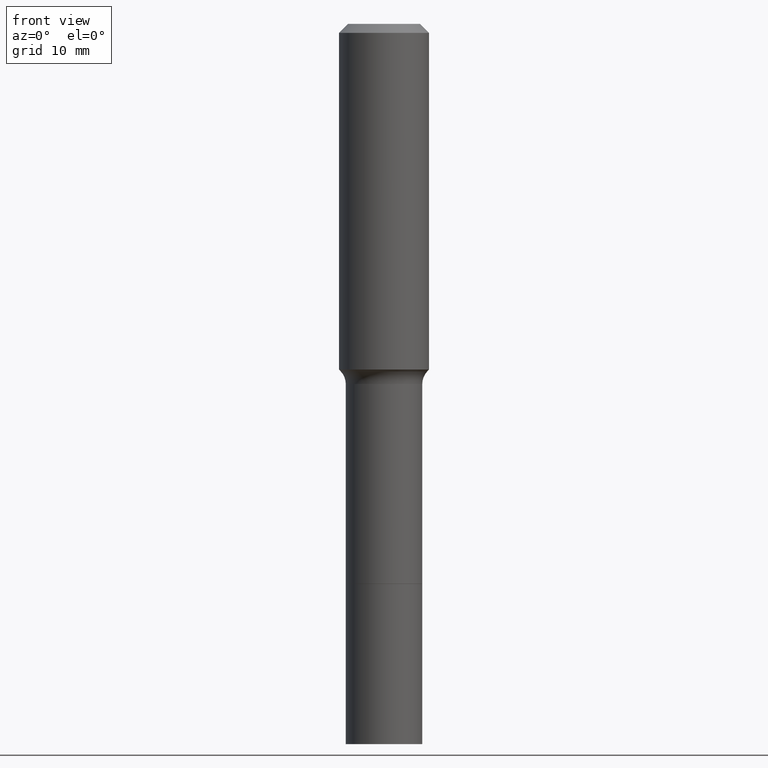
[diagram: clean part render]
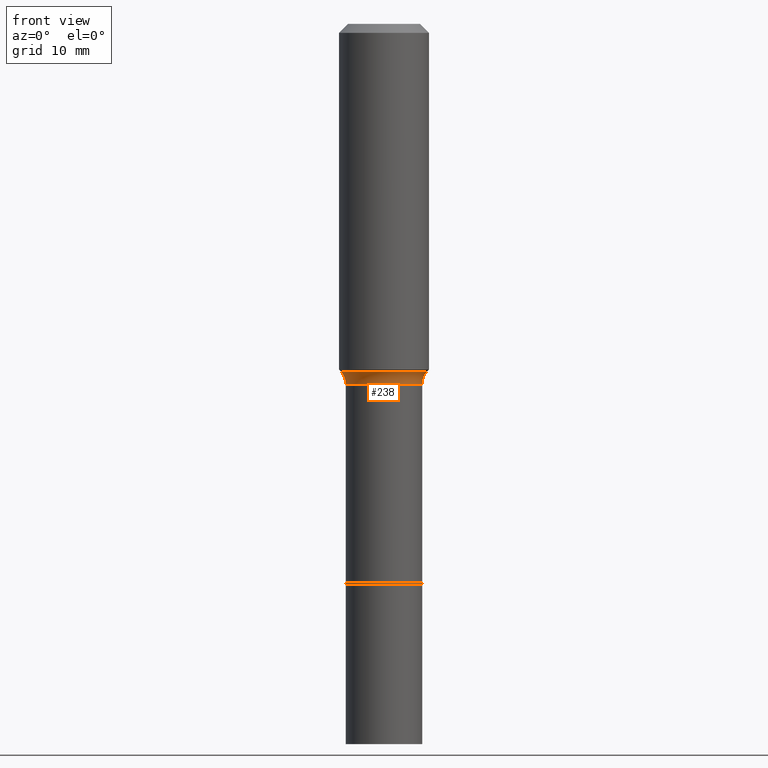
[diagram: same view with one face highlighted and labeled with its STEP entity id]
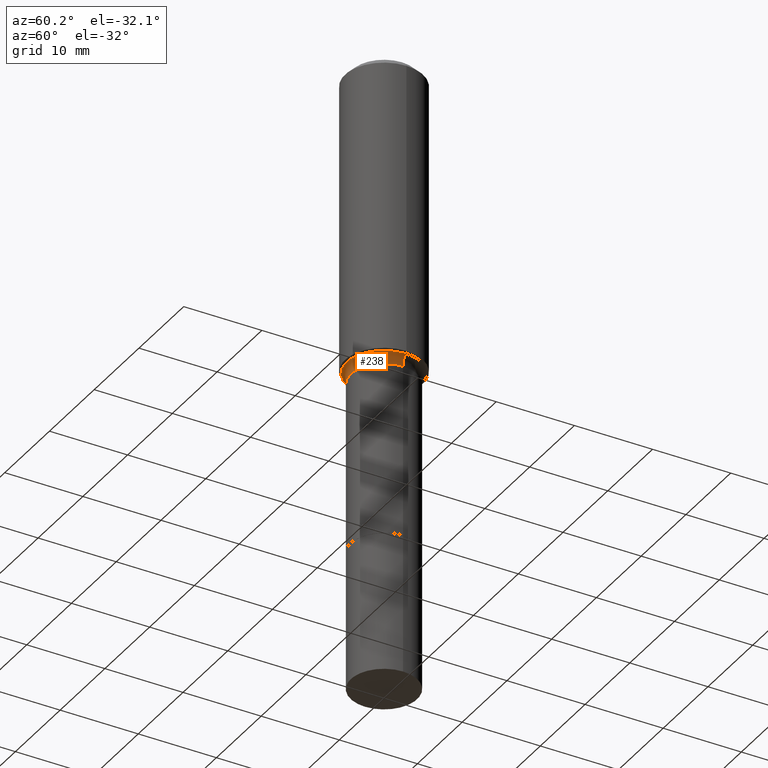
[diagram: same view with one face highlighted and labeled with its STEP entity id]
A machine part, front view. The second image highlights one B-rep face of the part: STEP entity #238.
A second angle (auxiliary view) of the same face is appended — the face is thin or edge-on in the first view.
In plain terms, the highlighted toroidal blend (fillet) surface has major radius 6.2814 mm and minor (blend) radius 2.032 mm.
Its self-contained STEP definition (entity closure, byte-faithful):
#3 = DIRECTION ( 'NONE',  ( -2.445468806185136597E-29, 3.491481338843145583E-15, 1.000000000000000000 ) ) ;
#4 = CIRCLE ( 'NONE', #191, 0.1672999999999999210 ) ;
#6 = CARTESIAN_POINT ( 'NONE',  ( 0.2472999999999998810, -7.224573186334231203E-15, -1.574600000000000222 ) ) ;
#18 = EDGE_CURVE ( 'NONE', #351, #142, #453, .T. ) ;
#45 = AXIS2_PLACEMENT_3D ( 'NONE', #6, #330, #82 ) ;
#77 = CARTESIAN_POINT ( 'NONE',  ( 0.1887917038704662043, -6.625517174344292647E-15, -1.520040131195000255 ) ) ;
#82 = DIRECTION ( 'NONE',  ( 1.000000000000000000, -6.982962677686265133E-15, 0.000000000000000000 ) ) ;
#118 = CARTESIAN_POINT ( 'NONE',  ( -0.2472999999999998810, -3.740514330607691625E-15, -1.574600000000000222 ) ) ;
#129 = DIRECTION ( 'NONE',  ( -2.445468806185136597E-29, 3.491481338843145583E-15, 1.000000000000000000 ) ) ;
#142 = VERTEX_POINT ( 'NONE', #77 ) ;
#144 = AXIS2_PLACEMENT_3D ( 'NONE', #118, #162, #514 ) ;
#162 = DIRECTION ( 'NONE',  ( 7.105427357601001859E-15, 1.000000000000000000, -3.491481338843145583E-15 ) ) ;
#172 = AXIS2_PLACEMENT_3D ( 'NONE', #204, #3, #437 ) ;
#175 = DIRECTION ( 'NONE',  ( 1.000000000000000000, -6.982962677686267499E-15, 0.000000000000000000 ) ) ;
#176 = EDGE_CURVE ( 'NONE', #339, #429, #4, .T. ) ;
#182 = TOROIDAL_SURFACE ( 'NONE', #502, 0.2472999999999998810, 0.07999999999999993228 ) ;
#191 = AXIS2_PLACEMENT_3D ( 'NONE', #410, #458, #175 ) ;
#192 = CIRCLE ( 'NONE', #45, 0.07999999999999993228 ) ;
#204 = CARTESIAN_POINT ( 'NONE',  ( 3.717210724986936016E-29, -5.307191752360030282E-15, -1.520040131195000255 ) ) ;
#216 = FACE_OUTER_BOUND ( 'NONE', #342, .T. ) ;
#238 = ADVANCED_FACE ( 'NONE', ( #216 ), #182, .F. ) ;
#249 = ORIENTED_EDGE ( 'NONE', *, *, #480, .T. ) ;
#259 = DIRECTION ( 'NONE',  ( 1.000000000000000000, -6.982962677686269077E-15, 4.883557194083114022E-29 ) ) ;
#260 = ORIENTED_EDGE ( 'NONE', *, *, #297, .F. ) ;
#270 = CARTESIAN_POINT ( 'NONE',  ( -0.1672999999999999210, -5.833852993955514416E-15, -1.574600000000000222 ) ) ;
#297 = EDGE_CURVE ( 'NONE', #142, #429, #192, .T. ) ;
#318 = CIRCLE ( 'NONE', #144, 0.07999999999999993228 ) ;
#330 = DIRECTION ( 'NONE',  ( -6.982962677686266711E-15, -1.000000000000000000, 3.491481338843145583E-15 ) ) ;
#332 = CARTESIAN_POINT ( 'NONE',  ( 3.850635182219116347E-29, -5.497686516142417553E-15, -1.574600000000000222 ) ) ;
#339 = VERTEX_POINT ( 'NONE', #270 ) ;
#342 = EDGE_LOOP ( 'NONE', ( #443, #249, #465, #260 ) ) ;
#351 = VERTEX_POINT ( 'NONE', #419 ) ;
#410 = CARTESIAN_POINT ( 'NONE',  ( 3.850635182219116347E-29, -5.497686516142417553E-15, -1.574600000000000222 ) ) ;
#419 = CARTESIAN_POINT ( 'NONE',  ( -0.1887917038704662043, -3.965746014790712962E-15, -1.520040131195000255 ) ) ;
#429 = VERTEX_POINT ( 'NONE', #459 ) ;
#437 = DIRECTION ( 'NONE',  ( 1.000000000000000000, -6.982962677686268288E-15, 0.000000000000000000 ) ) ;
#443 = ORIENTED_EDGE ( 'NONE', *, *, #18, .F. ) ;
#453 = CIRCLE ( 'NONE', #172, 0.1887917038704660655 ) ;
#458 = DIRECTION ( 'NONE',  ( -2.445468806185136597E-29, 3.491481338843145583E-15, 1.000000000000000000 ) ) ;
#459 = CARTESIAN_POINT ( 'NONE',  ( 0.1672999999999999210, -6.665936172119329551E-15, -1.574600000000000222 ) ) ;
#465 = ORIENTED_EDGE ( 'NONE', *, *, #176, .T. ) ;
#480 = EDGE_CURVE ( 'NONE', #351, #339, #318, .T. ) ;
#502 = AXIS2_PLACEMENT_3D ( 'NONE', #332, #129, #259 ) ;
#514 = DIRECTION ( 'NONE',  ( -1.000000000000000000, 7.105427357601005014E-15, 0.000000000000000000 ) ) ;